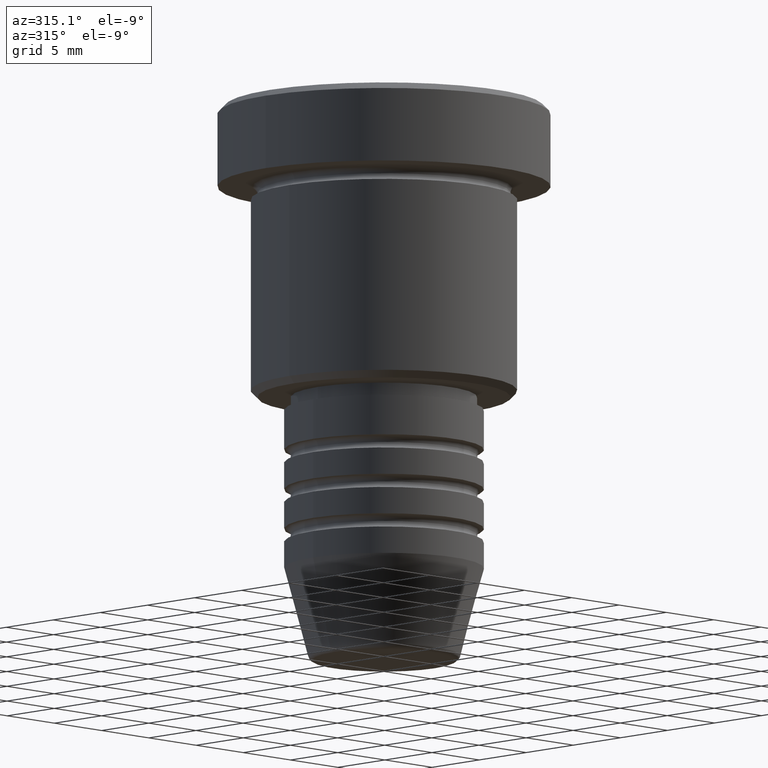
[diagram: clean part render]
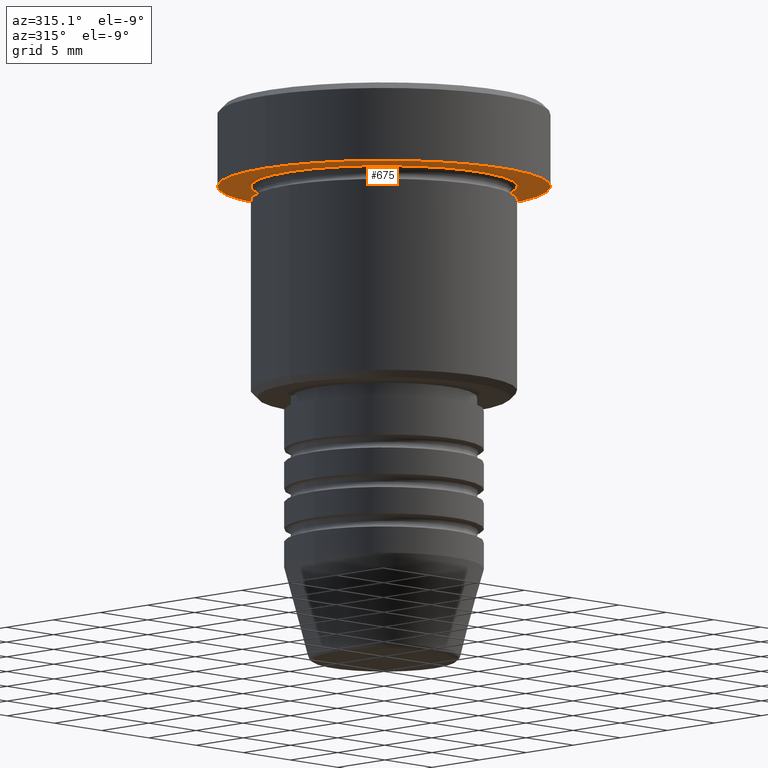
[diagram: same view with one face highlighted and labeled with its STEP entity id]
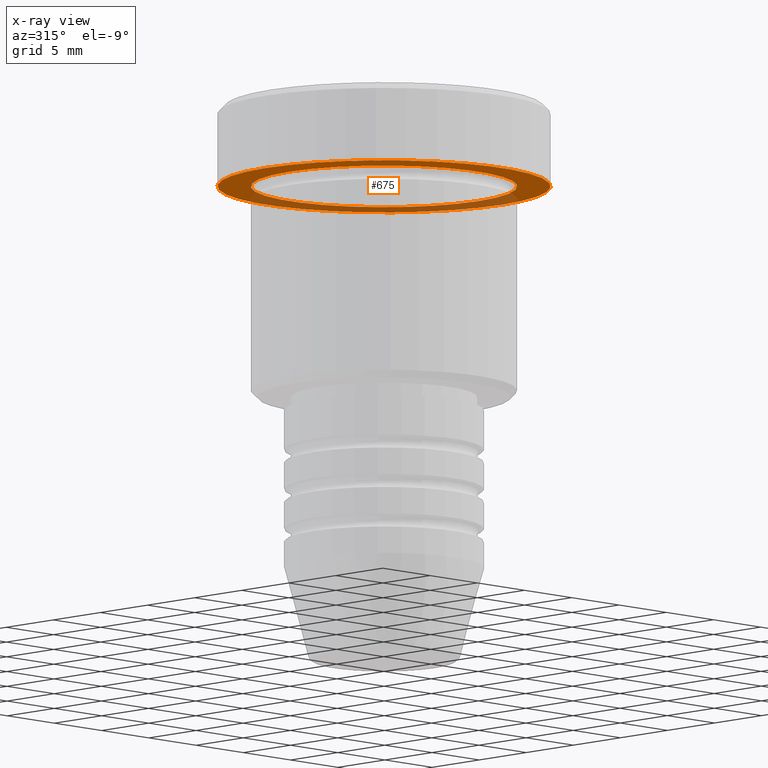
[diagram: x-ray of the same camera — body ghosted, the highlighted face saturated]
A machine part, auxiliary view. The second image highlights one B-rep face of the part: STEP entity #675.
The next image is the same camera in x-ray: the body ghosted, the highlighted face saturated — about 34% of this face is hidden behind the body in this view.
In plain terms, the highlighted planar face has unit normal (0, 0, -1).
Its self-contained STEP definition (entity closure, byte-faithful):
#17 = DIRECTION ( 'NONE',  ( -0.000000000000000000, -0.000000000000000000, 1.000000000000000000 ) ) ;
#33 = DIRECTION ( 'NONE',  ( -1.000000000000000000, 0.000000000000000000, 0.000000000000000000 ) ) ;
#37 = DIRECTION ( 'NONE',  ( 0.000000000000000000, 0.000000000000000000, -1.000000000000000000 ) ) ;
#72 = CARTESIAN_POINT ( 'NONE',  ( 10.00000000000000000, 1.224646799147353256E-15, -5.999999999999996447 ) ) ;
#88 = CARTESIAN_POINT ( 'NONE',  ( -12.50000000000000000, 1.530808498934191521E-15, -5.999999999999996447 ) ) ;
#101 = ORIENTED_EDGE ( 'NONE', *, *, #467, .T. ) ;
#112 = VERTEX_POINT ( 'NONE', #295 ) ;
#115 = CARTESIAN_POINT ( 'NONE',  ( 0.000000000000000000, 0.000000000000000000, -5.999999999999996447 ) ) ;
#119 = EDGE_CURVE ( 'NONE', #155, #352, #1165, .T. ) ;
#124 = FACE_BOUND ( 'NONE', #1114, .T. ) ;
#146 = CIRCLE ( 'NONE', #1018, 10.00000000000000000 ) ;
#155 = VERTEX_POINT ( 'NONE', #72 ) ;
#173 = ORIENTED_EDGE ( 'NONE', *, *, #630, .F. ) ;
#233 = DIRECTION ( 'NONE',  ( -1.000000000000000000, 0.000000000000000000, -0.000000000000000000 ) ) ;
#295 = CARTESIAN_POINT ( 'NONE',  ( 12.50000000000000000, 0.000000000000000000, -5.999999999999996447 ) ) ;
#299 = CIRCLE ( 'NONE', #665, 12.50000000000000000 ) ;
#302 = CIRCLE ( 'NONE', #722, 12.50000000000000000 ) ;
#312 = DIRECTION ( 'NONE',  ( -0.000000000000000000, -0.000000000000000000, 1.000000000000000000 ) ) ;
#343 = CARTESIAN_POINT ( 'NONE',  ( 0.000000000000000000, 0.000000000000000000, -5.999999999999996447 ) ) ;
#352 = VERTEX_POINT ( 'NONE', #1034 ) ;
#467 = EDGE_CURVE ( 'NONE', #352, #155, #146, .T. ) ;
#491 = CARTESIAN_POINT ( 'NONE',  ( 0.000000000000000000, 12.50000000000000000, -5.999999999999996447 ) ) ;
#535 = DIRECTION ( 'NONE',  ( -1.000000000000000000, 0.000000000000000000, 0.000000000000000000 ) ) ;
#545 = VERTEX_POINT ( 'NONE', #88 ) ;
#591 = CARTESIAN_POINT ( 'NONE',  ( 0.000000000000000000, 0.000000000000000000, -5.999999999999996447 ) ) ;
#608 = FACE_OUTER_BOUND ( 'NONE', #656, .T. ) ;
#630 = EDGE_CURVE ( 'NONE', #112, #545, #299, .T. ) ;
#656 = EDGE_LOOP ( 'NONE', ( #173, #1014 ) ) ;
#665 = AXIS2_PLACEMENT_3D ( 'NONE', #858, #674, #952 ) ;
#674 = DIRECTION ( 'NONE',  ( -0.000000000000000000, -0.000000000000000000, 1.000000000000000000 ) ) ;
#675 = ADVANCED_FACE ( 'NONE', ( #124, #608 ), #1040, .T. ) ;
#722 = AXIS2_PLACEMENT_3D ( 'NONE', #115, #17, #843 ) ;
#843 = DIRECTION ( 'NONE',  ( 1.000000000000000000, 0.000000000000000000, 0.000000000000000000 ) ) ;
#858 = CARTESIAN_POINT ( 'NONE',  ( 0.000000000000000000, 0.000000000000000000, -5.999999999999996447 ) ) ;
#913 = AXIS2_PLACEMENT_3D ( 'NONE', #491, #37, #233 ) ;
#952 = DIRECTION ( 'NONE',  ( 1.000000000000000000, 0.000000000000000000, 0.000000000000000000 ) ) ;
#961 = AXIS2_PLACEMENT_3D ( 'NONE', #591, #312, #33 ) ;
#970 = DIRECTION ( 'NONE',  ( -0.000000000000000000, -0.000000000000000000, 1.000000000000000000 ) ) ;
#988 = ORIENTED_EDGE ( 'NONE', *, *, #119, .T. ) ;
#1014 = ORIENTED_EDGE ( 'NONE', *, *, #1099, .F. ) ;
#1018 = AXIS2_PLACEMENT_3D ( 'NONE', #343, #970, #535 ) ;
#1034 = CARTESIAN_POINT ( 'NONE',  ( -10.00000000000000000, 0.000000000000000000, -5.999999999999996447 ) ) ;
#1040 = PLANE ( 'NONE',  #913 ) ;
#1099 = EDGE_CURVE ( 'NONE', #545, #112, #302, .T. ) ;
#1114 = EDGE_LOOP ( 'NONE', ( #101, #988 ) ) ;
#1165 = CIRCLE ( 'NONE', #961, 10.00000000000000000 ) ;